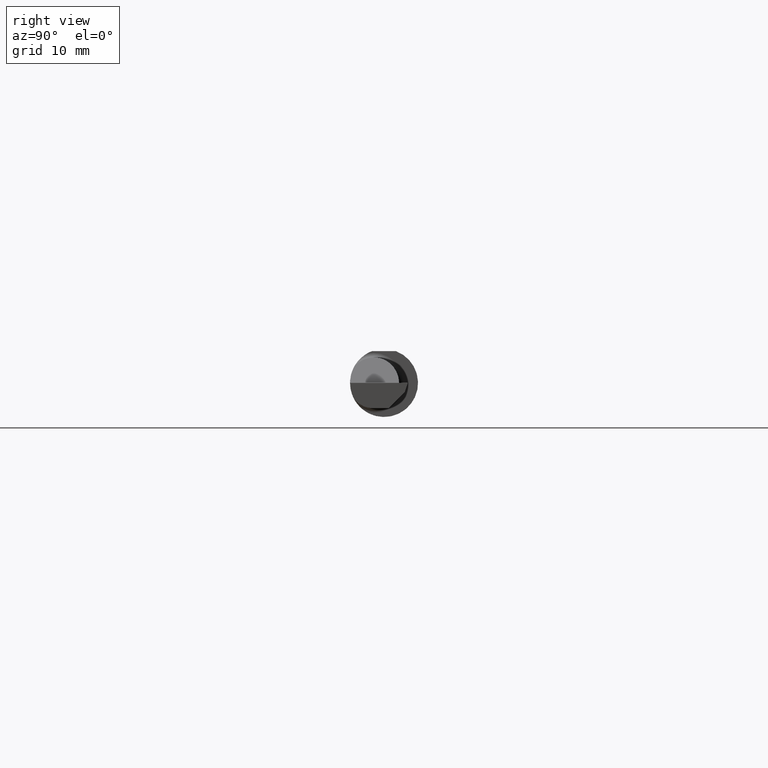
[diagram: clean part render]
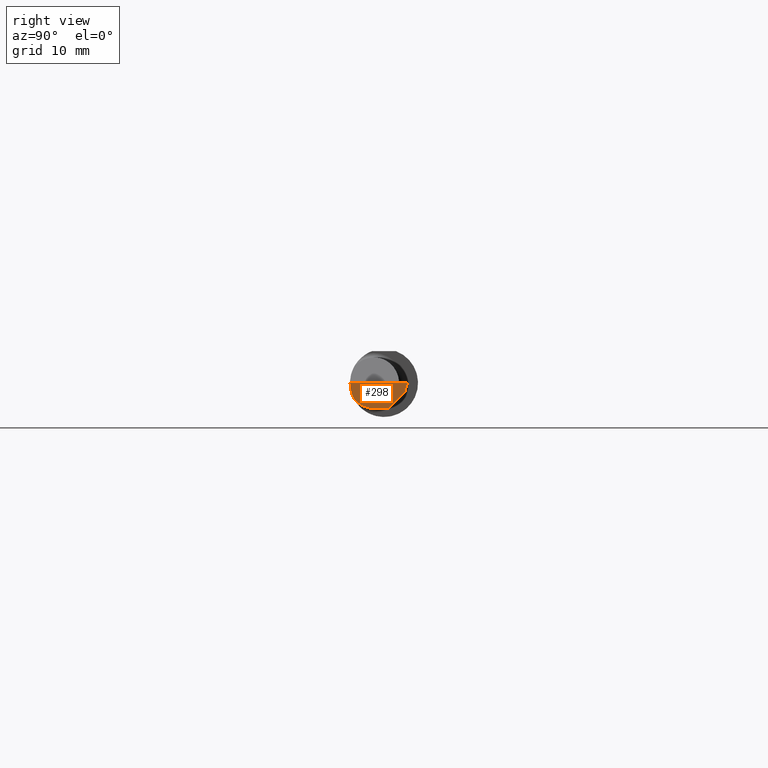
[diagram: same view with one face highlighted and labeled with its STEP entity id]
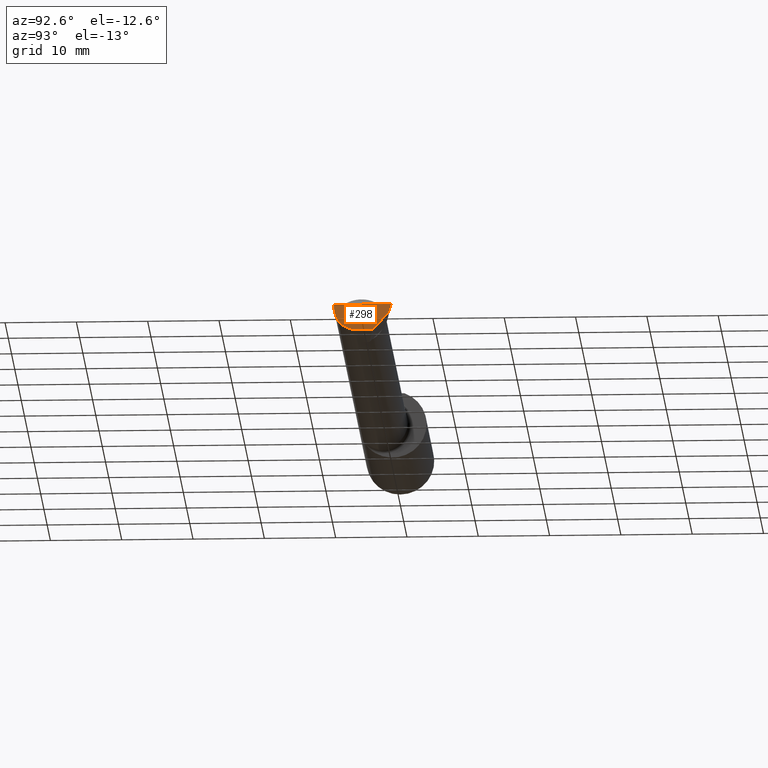
[diagram: same view with one face highlighted and labeled with its STEP entity id]
A machine part, right view. The second image highlights one B-rep face of the part: STEP entity #298.
A second angle (auxiliary view) of the same face is appended — the face is thin or edge-on in the first view.
In plain terms, the highlighted planar face has unit normal (-0.9922, 0.026, 0.1219).
Its self-contained STEP definition (entity closure, byte-faithful):
#9 = CARTESIAN_POINT ( 'NONE',  ( 3.981080296960509468, -0.1635956445993030639, -0.09130436773856169530 ) ) ;
#22 = LINE ( 'NONE', #565, #396 ) ;
#42 = ORIENTED_EDGE ( 'NONE', *, *, #489, .F. ) ;
#51 = VERTEX_POINT ( 'NONE', #628 ) ;
#53 = ORIENTED_EDGE ( 'NONE', *, *, #85, .F. ) ;
#61 = DIRECTION ( 'NONE',  ( 0.1219104985251946854, 0.000000000000000000, 0.9925410975618785825 ) ) ;
#62 =( BOUNDED_CURVE ( )  B_SPLINE_CURVE ( 3, ( #9, #205, #163, #107 ),
 .UNSPECIFIED., .F., .T. ) 
 B_SPLINE_CURVE_WITH_KNOTS ( ( 4, 4 ),
 ( 0.8516985021657665911, 1.360746882515200262 ),
 .UNSPECIFIED. ) 
 CURVE ( )  GEOMETRIC_REPRESENTATION_ITEM ( )  RATIONAL_B_SPLINE_CURVE ( ( 1.000000000000000000, 0.9785221379938657815, 0.9785221379938657815, 1.000000000000000000 ) ) 
 REPRESENTATION_ITEM ( '' )  );
#71 = EDGE_LOOP ( 'NONE', ( #352, #507, #169, #618, #53, #42 ) ) ;
#80 = VERTEX_POINT ( 'NONE', #343 ) ;
#82 = CARTESIAN_POINT ( 'NONE',  ( 3.977925907309857845, -0.1365595166907235813, -0.1227499502647107499 ) ) ;
#85 = EDGE_CURVE ( 'NONE', #51, #521, #332, .T. ) ;
#107 = CARTESIAN_POINT ( 'NONE',  ( 3.991672876940992154, -0.1873499999999999888, -1.700367819150454743E-16 ) ) ;
#123 = CARTESIAN_POINT ( 'NONE',  ( 3.980058035321255794, 0.02601009779168078975, -0.1400500000000000911 ) ) ;
#124 = EDGE_CURVE ( 'NONE', #470, #637, #551, .T. ) ;
#129 = CARTESIAN_POINT ( 'NONE',  ( 3.975850273311265060, -0.1244607267090814540, -0.1422282308645910209 ) ) ;
#130 = CARTESIAN_POINT ( 'NONE',  ( 3.990039159128060398, -0.2497391662021650749, -1.698694533788567331E-16 ) ) ;
#132 = CARTESIAN_POINT ( 'NONE',  ( 3.977873865042411250, -0.05739999999999999963, -0.1400500000000000633 ) ) ;
#163 = CARTESIAN_POINT ( 'NONE',  ( 3.987725449370725261, -0.1873499999999999610, -0.03213820089768520960 ) ) ;
#169 = ORIENTED_EDGE ( 'NONE', *, *, #255, .F. ) ;
#200 = EDGE_CURVE ( 'NONE', #308, #637, #226, .T. ) ;
#205 = CARTESIAN_POINT ( 'NONE',  ( 3.984117089522338340, -0.1792580844883770452, -0.06324101202936138755 ) ) ;
#220 = DIRECTION ( 'NONE',  ( -0.1240019227988271994, -0.3022330132596592334, -0.9451342385281470415 ) ) ;
#226 = LINE ( 'NONE', #268, #425 ) ;
#255 = EDGE_CURVE ( 'NONE', #80, #308, #22, .T. ) ;
#268 = CARTESIAN_POINT ( 'NONE',  ( 3.977889026591898691, -0.05682100378451884065, -0.1400500000000000633 ) ) ;
#271 = LINE ( 'NONE', #274, #499 ) ;
#274 = CARTESIAN_POINT ( 'NONE',  ( 3.993291301099662238, 0.1142987190042921153, -0.05113324764279836981 ) ) ;
#298 = ADVANCED_FACE ( 'NONE', ( #413 ), #424, .F. ) ;
#308 = VERTEX_POINT ( 'NONE', #123 ) ;
#316 = DIRECTION ( 'NONE',  ( -0.1053106618240637754, -0.6976485211320200275, -0.7086580314005358483 ) ) ;
#332 = LINE ( 'NONE', #130, #538 ) ;
#340 = CARTESIAN_POINT ( 'NONE',  ( 3.977873865042411250, -0.05739999999999999963, -0.1400500000000000633 ) ) ;
#343 = CARTESIAN_POINT ( 'NONE',  ( 3.993439983562941720, 0.1146611065212079367, -0.05000000000000003053 ) ) ;
#352 = ORIENTED_EDGE ( 'NONE', *, *, #124, .T. ) ;
#367 = DIRECTION ( 'NONE',  ( -0.9922060308645607174, 0.02598182930461463355, 0.1218693434050595603 ) ) ;
#396 = VECTOR ( 'NONE', #316, 39.37007874015748854 ) ;
#413 = FACE_OUTER_BOUND ( 'NONE', #71, .T. ) ;
#424 = PLANE ( 'NONE',  #614 ) ;
#425 = VECTOR ( 'NONE', #522, 39.37007874015748854 ) ;
#462 = CARTESIAN_POINT ( 'NONE',  ( 3.981080296960509468, -0.1635956445993030639, -0.09130436773856169530 ) ) ;
#470 = VERTEX_POINT ( 'NONE', #462 ) ;
#489 = EDGE_CURVE ( 'NONE', #470, #51, #62, .T. ) ;
#499 = VECTOR ( 'NONE', #220, 39.37007874015748143 ) ;
#507 = ORIENTED_EDGE ( 'NONE', *, *, #200, .F. ) ;
#521 = VERTEX_POINT ( 'NONE', #553 ) ;
#522 = DIRECTION ( 'NONE',  ( -0.02617694830779360160, -0.9996573249755593693, -8.492548844487341413E-17 ) ) ;
#536 = DIRECTION ( 'NONE',  ( 0.02617694830779359119, 0.9996573249755593693, -2.681093642708627860E-18 ) ) ;
#538 = VECTOR ( 'NONE', #536, 39.37007874015748854 ) ;
#551 =( BOUNDED_CURVE ( )  B_SPLINE_CURVE ( 3, ( #581, #82, #577, #340 ),
 .UNSPECIFIED., .F., .F. ) 
 B_SPLINE_CURVE_WITH_KNOTS ( ( 4, 4 ),
 ( 5.632580117768153372, 6.493234751459281640 ),
 .UNSPECIFIED. ) 
 CURVE ( )  GEOMETRIC_REPRESENTATION_ITEM ( )  RATIONAL_B_SPLINE_CURVE ( ( 1.000000000000000000, 0.9392195014330942948, 0.9392195014330942948, 1.000000000000000000 ) ) 
 REPRESENTATION_ITEM ( '' )  );
#553 = CARTESIAN_POINT ( 'NONE',  ( 3.999999999999979572, 0.1306500000000239969, 8.432873275442372511E-14 ) ) ;
#565 = CARTESIAN_POINT ( 'NONE',  ( 3.987166985808005659, 0.07310455820032743524, -0.09221234738244871165 ) ) ;
#577 = CARTESIAN_POINT ( 'NONE',  ( 3.976787929832031221, -0.09887019258091184204, -0.1400500000000000078 ) ) ;
#581 = CARTESIAN_POINT ( 'NONE',  ( 3.981080296960509468, -0.1635956445993030639, -0.09130436773856169530 ) ) ;
#614 = AXIS2_PLACEMENT_3D ( 'NONE', #129, #367, #61 ) ;
#618 = ORIENTED_EDGE ( 'NONE', *, *, #626, .F. ) ;
#626 = EDGE_CURVE ( 'NONE', #521, #80, #271, .T. ) ;
#628 = CARTESIAN_POINT ( 'NONE',  ( 3.991672876940992154, -0.1873499999999999888, -1.700367819150454743E-16 ) ) ;
#637 = VERTEX_POINT ( 'NONE', #132 ) ;